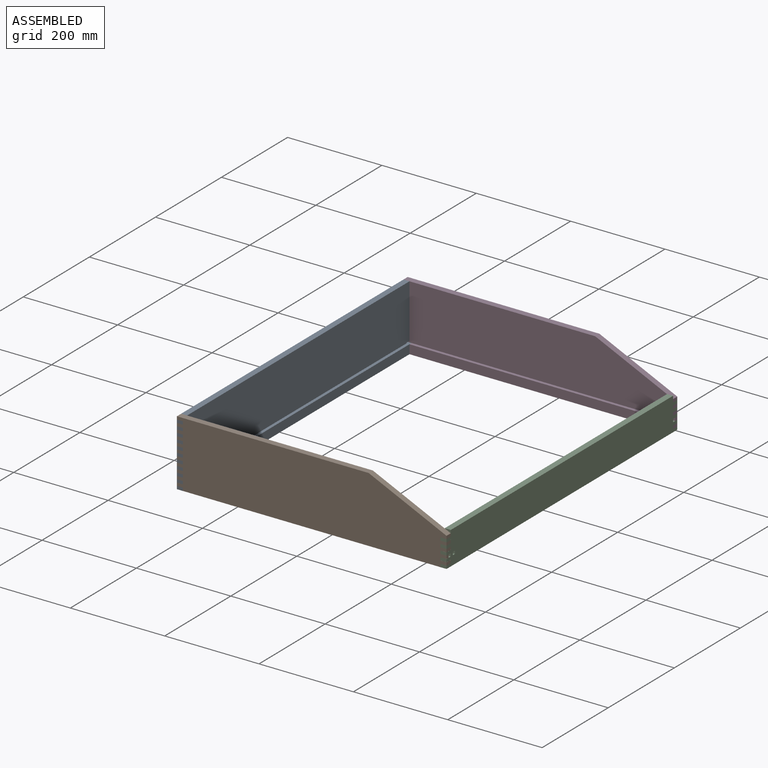
[diagram: assembled view]
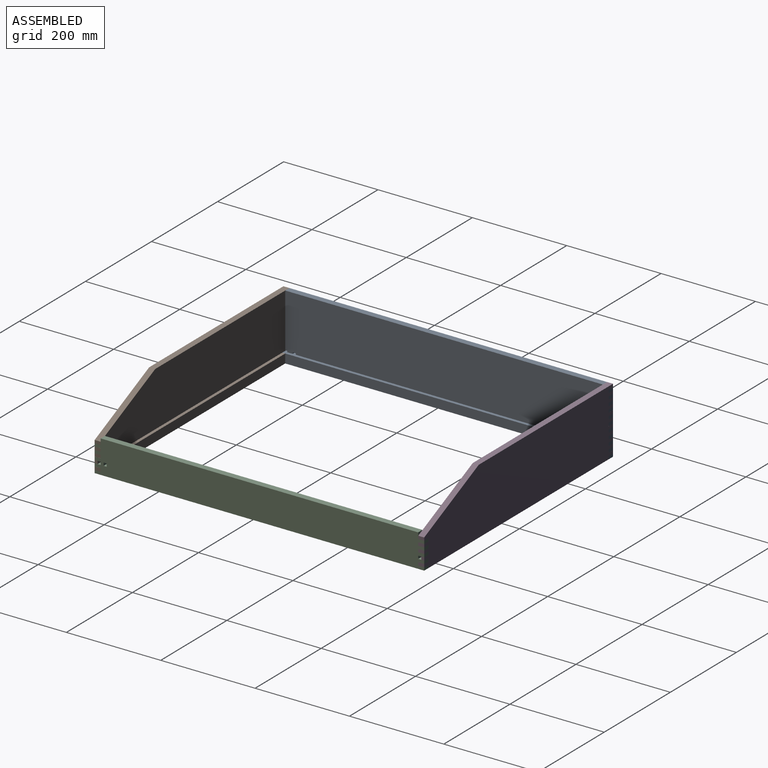
[diagram: assembled view, second angle]
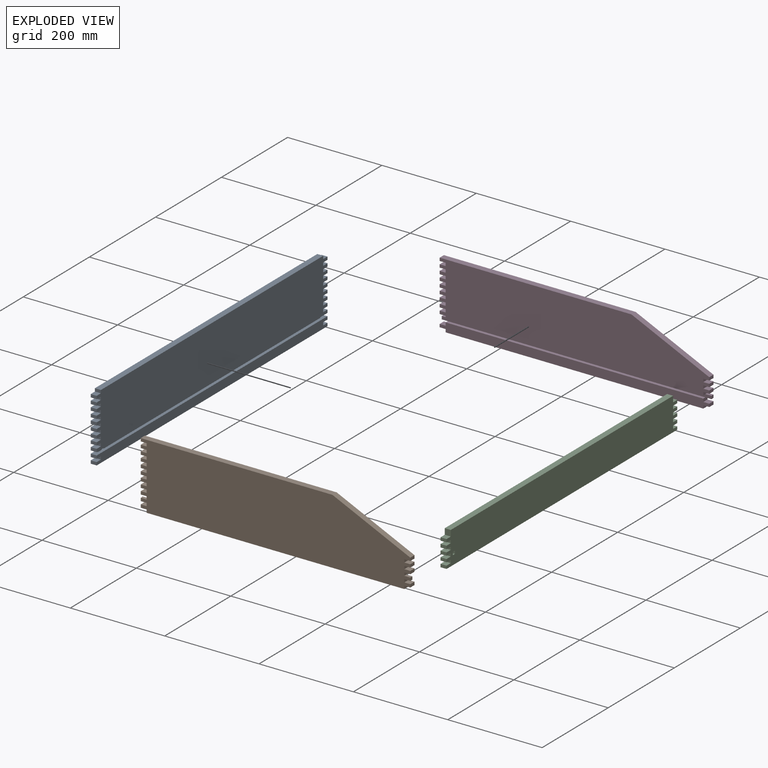
[diagram: exploded view]
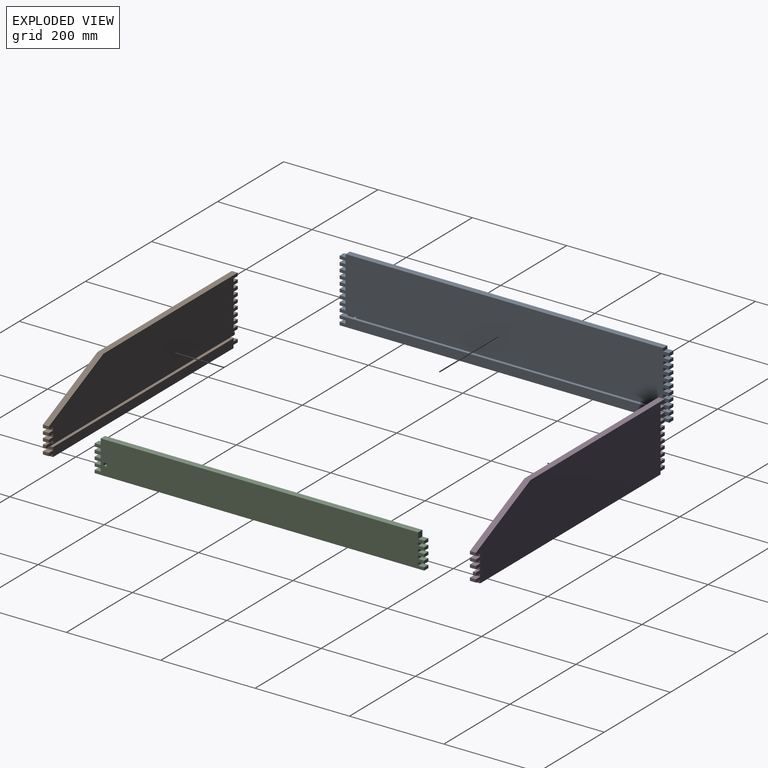
[diagram: exploded view, second angle]
ASSEMBLY  parts=4 mates=7
PART A: 93 faces, bbox 12.7x698.5x139.7 mm
  f0: plane 698.5x139.7mm, normal (-1,0,0), area 95785.7mm2, adj f2,f3,f5,f6,f7,f8,f9,f10
  f1: plane 655.51x6.35mm, normal (1,0,0), area 4162.5mm2, adj f3,f73,f74,f92
  f2: plane 6.35x6.35mm, normal (0,-1,0), area 40.3mm2, adj f0,f73,f74,f90
  f3: plane 6.35x6.35mm, normal (0,1,0), area 40.3mm2, adj f0,f1,f73,f74
  f4: plane 698.5x19.05mm, normal (1,0,0), area 13146.9mm2, adj f62,f63,f64,f65,f66,f67,f68,f69
  f5: plane 12.7x6.35mm, normal (0,1,0), area 80.6mm2, adj f0,f6,f88,f89
  f6: plane 12.7x12.54mm, normal (0,0,-1), area 159.3mm2, adj f0,f5,f7,f89
  f7: plane 12.7x6.35mm, normal (0,1,0), area 80.6mm2, adj f0,f6,f8,f89
  f8: plane 12.7x12.54mm, normal (0,0,1), area 159.3mm2, adj f0,f7,f9,f89
  f9: plane 12.7x6.35mm, normal (0,1,0), area 80.6mm2, adj f0,f8,f10,f89
  f10: plane 12.7x12.52mm, normal (0,0,-1), area 158.9mm2, adj f0,f9,f11,f89
  f11: plane 12.7x6.35mm, normal (0,1,0), area 80.6mm2, adj f0,f10,f12,f89
  f12: plane 12.7x12.52mm, normal (0,0,1), area 158.9mm2, adj f0,f11,f13,f89
  f13: plane 12.7x6.35mm, normal (0,1,0), area 80.6mm2, adj f0,f12,f14,f89
  f14: plane 12.7x12.54mm, normal (0,0,-1), area 159.3mm2, adj f0,f13,f15,f89
  f15: plane 12.7x6.35mm, normal (0,1,0), area 80.6mm2, adj f0,f14,f16,f89
  f16: plane 12.7x12.54mm, normal (0,0,1), area 159.3mm2, adj f0,f15,f17,f89
  f17: plane 12.7x6.35mm, normal (0,1,0), area 80.6mm2, adj f0,f16,f18,f89
  f18: plane 12.7x12.54mm, normal (0,0,-1), area 159.3mm2, adj f0,f17,f19,f89
  f19: plane 12.7x6.35mm, normal (0,1,0), area 80.6mm2, adj f0,f18,f20,f89
  f20: plane 12.7x12.54mm, normal (0,0,1), area 159.3mm2, adj f0,f19,f21,f89
  f21: plane 12.7x6.35mm, normal (0,1,0), area 80.6mm2, adj f0,f20,f22,f89
  f22: plane 12.7x12.54mm, normal (0,0,-1), area 159.3mm2, adj f0,f21,f23,f89
  f23: plane 12.7x6.35mm, normal (0,1,0), area 80.6mm2, adj f0,f22,f24,f89
  f24: plane 12.7x12.7mm, normal (0,0,1), area 161.3mm2, adj f0,f23,f25,f89
  f25: plane 12.7x6.35mm, normal (0,1,0), area 80.6mm2, adj f0,f24,f26,f89
  f26: plane 673.1x12.7mm, normal (0,0,1), area 8548.4mm2, adj f0,f25,f27,f89
  f27: plane 12.7x6.35mm, normal (0,-1,0), area 80.6mm2, adj f0,f26,f28,f89
  f28: plane 12.7x12.7mm, normal (0,0,1), area 161.3mm2, adj f0,f27,f29,f89
  f29: plane 12.7x6.35mm, normal (0,-1,0), area 80.6mm2, adj f0,f28,f30,f89
  f30: plane 12.7x12.54mm, normal (0,0,-1), area 159.3mm2, adj f0,f29,f31,f89
  f31: plane 12.7x6.35mm, normal (0,-1,0), area 80.6mm2, adj f0,f30,f32,f89
  f32: plane 12.7x12.54mm, normal (0,0,1), area 159.3mm2, adj f0,f31,f33,f89
  f33: plane 12.7x6.35mm, normal (0,-1,0), area 80.6mm2, adj f0,f32,f34,f89
  f34: plane 12.7x12.54mm, normal (0,0,-1), area 159.3mm2, adj f0,f33,f35,f89
  f35: plane 12.7x6.35mm, normal (0,-1,0), area 80.6mm2, adj f0,f34,f36,f89
  f36: plane 12.7x12.54mm, normal (0,0,1), area 159.3mm2, adj f0,f35,f37,f89
  f37: plane 12.7x6.35mm, normal (0,-1,0), area 80.6mm2, adj f0,f36,f38,f89
  f38: plane 12.7x12.54mm, normal (0,0,-1), area 159.3mm2, adj f0,f37,f39,f89
  f39: plane 12.7x6.35mm, normal (0,-1,0), area 80.6mm2, adj f0,f38,f40,f89
  f40: plane 12.7x12.52mm, normal (0,0,1), area 158.9mm2, adj f0,f39,f41,f89
  f41: plane 12.7x6.35mm, normal (0,-1,0), area 80.6mm2, adj f0,f40,f42,f89
  f42: plane 12.7x12.52mm, normal (0,0,-1), area 158.9mm2, adj f0,f41,f43,f89
  f43: plane 12.7x6.35mm, normal (0,-1,0), area 80.6mm2, adj f0,f42,f44,f89
  f44: plane 12.7x12.54mm, normal (0,0,1), area 159.3mm2, adj f0,f43,f45,f89
  f45: plane 12.7x6.35mm, normal (0,-1,0), area 80.6mm2, adj f0,f44,f46,f89
  f46: plane 12.7x12.54mm, normal (0,0,-1), area 159.3mm2, adj f0,f45,f47,f89
  f47: plane 12.7x6.35mm, normal (0,-1,0), area 80.6mm2, adj f0,f46,f48,f89
  f48: plane 12.7x12.54mm, normal (0,0,1), area 159.3mm2, adj f0,f47,f49,f89
  f49: plane 12.7x6.35mm, normal (0,-1,0), area 80.6mm2, adj f0,f48,f50,f89
  f50: plane 12.7x12.54mm, normal (0,0,-1), area 159.3mm2, adj f0,f49,f51,f89
  f51: plane 12.7x6.35mm, normal (0,-1,0), area 80.6mm2, adj f0,f50,f52,f89
  f52: plane 12.7x12.54mm, normal (0,0,1), area 159.3mm2, adj f0,f51,f53,f89
  f53: plane 12.7x6.35mm, normal (0,-1,0), area 80.6mm2, adj f0,f52,f54,f89
  f54: plane 12.7x12.54mm, normal (0,0,-1), area 159.3mm2, adj f0,f53,f55,f89
  f55: plane 12.7x6.35mm, normal (0,-1,0), area 80.6mm2, adj f0,f54,f56,f89
  f56: plane 12.7x12.54mm, normal (0,0,1), area 159.3mm2, adj f0,f55,f57,f89
  f57: plane 12.7x6.35mm, normal (0,-1,0), area 80.6mm2, adj f0,f56,f58,f89
  f58: plane 12.7x12.54mm, normal (0,0,-1), area 159.3mm2, adj f0,f57,f59,f89
  f59: plane 12.7x6.35mm, normal (0,-1,0), area 80.6mm2, adj f0,f58,f60,f89
  f60: plane 12.7x12.54mm, normal (0,0,1), area 159.3mm2, adj f0,f59,f61,f89
  f61: plane 12.7x6.35mm, normal (0,-1,0), area 80.6mm2, adj f0,f60,f74,f89
  f62: plane 12.7x6.35mm, normal (0,-1,0), area 80.6mm2, adj f0,f4,f63,f73
  f63: plane 12.7x12.52mm, normal (0,0,-1), area 158.9mm2, adj f0,f4,f62,f64
  f64: plane 12.7x6.35mm, normal (0,-1,0), area 80.6mm2, adj f0,f4,f63,f65
  f65: plane 12.7x12.54mm, normal (0,0,1), area 159.3mm2, adj f0,f4,f64,f66
  f66: plane 12.7x6.35mm, normal (0,-1,0), area 80.6mm2, adj f0,f4,f65,f67
  f67: plane 698.5x12.7mm, normal (0,0,-1), area 8870.9mm2, adj f0,f4,f66,f68
  f68: plane 12.7x6.35mm, normal (0,1,0), area 80.6mm2, adj f0,f4,f67,f69
  f69: plane 12.7x12.54mm, normal (0,0,1), area 159.3mm2, adj f0,f4,f68,f70
  f70: plane 12.7x6.35mm, normal (0,1,0), area 80.6mm2, adj f0,f4,f69,f71
  f71: plane 12.7x12.52mm, normal (0,0,-1), area 158.9mm2, adj f0,f4,f70,f72
  f72: plane 12.7x6.35mm, normal (0,1,0), area 80.6mm2, adj f0,f4,f71,f73
  f73: plane 698.45x12.7mm, normal (0,0,1), area 4634.4mm2, adj f0,f1,f2,f3,f4,f62,f72,f90
  f74: plane 698.5x12.7mm, normal (0,0,-1), area 4635mm2, adj f0,f1,f2,f3,f61,f75,f89,f90
  f75: plane 12.7x6.35mm, normal (0,1,0), area 80.6mm2, adj f0,f74,f76,f89
  f76: plane 12.7x12.54mm, normal (0,0,1), area 159.3mm2, adj f0,f75,f77,f89
  f77: plane 12.7x6.35mm, normal (0,1,0), area 80.6mm2, adj f0,f76,f78,f89
  f78: plane 12.7x12.54mm, normal (0,0,-1), area 159.3mm2, adj f0,f77,f79,f89
  f79: plane 12.7x6.35mm, normal (0,1,0), area 80.6mm2, adj f0,f78,f80,f89
  f80: plane 12.7x12.54mm, normal (0,0,1), area 159.3mm2, adj f0,f79,f81,f89
  f81: plane 12.7x6.35mm, normal (0,1,0), area 80.6mm2, adj f0,f80,f82,f89
  f82: plane 12.7x12.54mm, normal (0,0,-1), area 159.3mm2, adj f0,f81,f83,f89
  f83: plane 12.7x6.35mm, normal (0,1,0), area 80.6mm2, adj f0,f82,f84,f89
  f84: plane 12.7x12.54mm, normal (0,0,1), area 159.3mm2, adj f0,f83,f85,f89
  f85: plane 12.7x6.35mm, normal (0,1,0), area 80.6mm2, adj f0,f84,f86,f89
  f86: plane 12.7x12.54mm, normal (0,0,-1), area 159.3mm2, adj f0,f85,f87,f89
  f87: plane 12.7x6.35mm, normal (0,1,0), area 80.6mm2, adj f0,f86,f88,f89
  f88: plane 12.7x12.54mm, normal (0,0,1), area 159.3mm2, adj f0,f5,f87,f89
  f89: plane 698.5x114.3mm, normal (1,0,0), area 78402.9mm2, adj f5,f6,f7,f8,f9,f10,f11,f12
  f90: plane 11.56x6.35mm, normal (1,0,0), area 73.4mm2, adj f2,f73,f74,f91
  f91: plane 6.35x6.35mm, normal (0,1,0), area 40.3mm2, adj f0,f73,f74,f90
  f92: plane 6.35x6.35mm, normal (0,-1,0), area 40.3mm2, adj f0,f1,f73,f74
PART B: 71 faces, bbox 571.5x12.7x139.7 mm
  f0: plane 12.7x6.35mm, normal (0,0,-1), area 80.6mm2, adj f8,f9,f67,f70
  f1: plane 12.7x6.35mm, normal (0,0,1), area 80.6mm2, adj f21,f22,f67,f70
  f2: plane 571.5x114.3mm, normal (0,1,0), area 58064.4mm2, adj f3,f4,f5,f6,f22,f23,f24,f25
  f3: plane 12.7x12.7mm, normal (0,0,1), area 161.3mm2, adj f2,f4,f65,f67
  f4: plane 12.7x6.35mm, normal (-1,0,0), area 80.6mm2, adj f2,f3,f5,f67
  f5: plane 12.7x12.7mm, normal (0,0,-1), area 161.3mm2, adj f2,f4,f6,f67
  f6: plane 12.7x6.35mm, normal (-1,0,0), area 80.6mm2, adj f2,f5,f7,f67,f69
  f7: plane 12.7x6.35mm, normal (0,0,1), area 80.6mm2, adj f6,f8,f67,f70
  f8: plane 6.35x6.35mm, normal (-1,0,0), area 40.3mm2, adj f0,f7,f67,f70
  f9: plane 12.7x6.35mm, normal (-1,0,0), area 80.6mm2, adj f0,f10,f66,f67,f68
  f10: plane 12.7x12.7mm, normal (0,0,1), area 161.3mm2, adj f9,f11,f66,f67
  f11: plane 12.7x6.35mm, normal (-1,0,0), area 80.6mm2, adj f10,f12,f66,f67
  f12: plane 12.7x12.7mm, normal (0,0,-1), area 161.3mm2, adj f11,f13,f66,f67
  f13: plane 12.7x6.35mm, normal (-1,0,0), area 80.6mm2, adj f12,f14,f66,f67
  f14: plane 546.1x12.7mm, normal (0,0,-1), area 6935.5mm2, adj f13,f15,f66,f67
  f15: plane 12.7x6.35mm, normal (1,0,0), area 80.6mm2, adj f14,f16,f66,f67
  f16: plane 12.7x12.7mm, normal (0,0,-1), area 161.3mm2, adj f15,f17,f66,f67
  f17: plane 12.7x6.35mm, normal (1,0,0), area 80.6mm2, adj f16,f18,f66,f67
  f18: plane 12.7x12.7mm, normal (0,0,1), area 161.3mm2, adj f17,f19,f66,f67
  f19: plane 12.7x6.35mm, normal (1,0,0), area 80.6mm2, adj f18,f20,f66,f67,f68
  f20: plane 12.7x6.35mm, normal (0,0,-1), area 80.6mm2, adj f19,f21,f67,f70
  f21: plane 6.35x6.35mm, normal (1,0,0), area 40.3mm2, adj f1,f20,f67,f70
  f22: plane 12.7x6.35mm, normal (1,0,0), area 80.6mm2, adj f1,f2,f23,f67,f69
  f23: plane 12.7x12.7mm, normal (0,0,-1), area 161.3mm2, adj f2,f22,f24,f67
  f24: plane 12.7x6.35mm, normal (1,0,0), area 80.6mm2, adj f2,f23,f25,f67
  f25: plane 12.7x12.7mm, normal (0,0,1), area 161.3mm2, adj f2,f24,f26,f67
  f26: plane 12.7x6.35mm, normal (1,0,0), area 80.6mm2, adj f2,f25,f27,f67
  f27: plane 12.7x12.7mm, normal (0,0,-1), area 161.3mm2, adj f2,f26,f28,f67
  f28: plane 12.7x6.35mm, normal (1,0,0), area 80.6mm2, adj f2,f27,f29,f67
  f29: plane 12.7x12.7mm, normal (0,0,1), area 161.3mm2, adj f2,f28,f30,f67
  f30: plane 12.7x6.35mm, normal (1,0,0), area 80.6mm2, adj f2,f29,f31,f67
  f31: plane 12.7x12.7mm, normal (0,0,-1), area 161.3mm2, adj f2,f30,f32,f67
  f32: plane 12.7x6.35mm, normal (1,0,0), area 80.6mm2, adj f2,f31,f33,f67
  f33: plane 165.1x76.2mm, normal (0.42,0,0.91), area 2309.3mm2, adj f2,f32,f34,f67
  f34: plane 406.4x12.7mm, normal (0,0,1), area 5161.3mm2, adj f2,f33,f35,f67
  f35: plane 12.7x6.35mm, normal (-1,0,0), area 80.6mm2, adj f2,f34,f36,f67
  f36: plane 12.7x12.7mm, normal (0,0,-1), area 161.3mm2, adj f2,f35,f37,f67
  f37: plane 12.7x6.35mm, normal (-1,0,0), area 80.6mm2, adj f2,f36,f38,f67
  f38: plane 12.7x12.7mm, normal (0,0,1), area 161.3mm2, adj f2,f37,f39,f67
  f39: plane 12.7x6.35mm, normal (-1,0,0), area 80.6mm2, adj f2,f38,f40,f67
  f40: plane 12.7x12.7mm, normal (0,0,-1), area 161.3mm2, adj f2,f39,f41,f67
  f41: plane 12.7x6.35mm, normal (-1,0,0), area 80.6mm2, adj f2,f40,f42,f67
  f42: plane 12.7x12.7mm, normal (0,0,1), area 161.3mm2, adj f2,f41,f43,f67
  f43: plane 12.7x6.35mm, normal (-1,0,0), area 80.6mm2, adj f2,f42,f44,f67
  f44: plane 12.7x12.7mm, normal (0,0,-1), area 161.3mm2, adj f2,f43,f45,f67
  f45: plane 12.7x6.35mm, normal (-1,0,0), area 80.6mm2, adj f2,f44,f46,f67
  f46: plane 12.7x12.7mm, normal (0,0,1), area 161.3mm2, adj f2,f45,f47,f67
  f47: plane 12.7x6.35mm, normal (-1,0,0), area 80.6mm2, adj f2,f46,f48,f67
  f48: plane 12.7x12.7mm, normal (0,0,-1), area 161.3mm2, adj f2,f47,f49,f67
  f49: plane 12.7x6.35mm, normal (-1,0,0), area 80.6mm2, adj f2,f48,f50,f67
  f50: plane 12.7x12.7mm, normal (0,0,1), area 161.3mm2, adj f2,f49,f51,f67
  f51: plane 12.7x6.35mm, normal (-1,0,0), area 80.6mm2, adj f2,f50,f52,f67
  f52: plane 12.7x12.7mm, normal (0,0,-1), area 161.3mm2, adj f2,f51,f53,f67
  f53: plane 12.7x6.35mm, normal (-1,0,0), area 80.6mm2, adj f2,f52,f54,f67
  f54: plane 12.7x12.7mm, normal (0,0,1), area 161.3mm2, adj f2,f53,f55,f67
  f55: plane 12.7x6.35mm, normal (-1,0,0), area 80.6mm2, adj f2,f54,f56,f67
  f56: plane 12.7x12.7mm, normal (0,0,-1), area 161.3mm2, adj f2,f55,f57,f67
  f57: plane 12.7x6.35mm, normal (-1,0,0), area 80.6mm2, adj f2,f56,f58,f67
  f58: plane 12.7x12.7mm, normal (0,0,1), area 161.3mm2, adj f2,f57,f59,f67
  f59: plane 12.7x6.35mm, normal (-1,0,0), area 80.6mm2, adj f2,f58,f60,f67
  f60: plane 12.7x12.7mm, normal (0,0,-1), area 161.3mm2, adj f2,f59,f61,f67
  f61: plane 12.7x6.35mm, normal (-1,0,0), area 80.6mm2, adj f2,f60,f62,f67
  f62: plane 12.7x12.7mm, normal (0,0,1), area 161.3mm2, adj f2,f61,f63,f67
  f63: plane 12.7x6.35mm, normal (-1,0,0), area 80.6mm2, adj f2,f62,f64,f67
  f64: plane 12.7x12.7mm, normal (0,0,-1), area 161.3mm2, adj f2,f63,f65,f67
  f65: plane 12.7x6.35mm, normal (-1,0,0), area 80.6mm2, adj f2,f3,f64,f67
  f66: plane 571.5x19.05mm, normal (0,1,0), area 10564.5mm2, adj f9,f10,f11,f12,f13,f14,f15,f16
  f67: plane 571.5x139.7mm, normal (0,-1,0), area 72257.9mm2, adj f0,f1,f3,f4,f5,f6,f7,f8
  f68: plane 546.1x6.35mm, normal (0,0,1), area 3467.7mm2, adj f9,f19,f66,f70
  f69: plane 546.1x6.35mm, normal (0,0,-1), area 3467.7mm2, adj f2,f6,f22,f70
  f70: plane 571.5x6.35mm, normal (0,1,0), area 3629mm2, adj f0,f1,f7,f8,f20,f21,f68,f69
PART C: 50 faces, bbox 12.7x698.5x69.9 mm
  f0: plane 12.7x6.35mm, normal (0,0,-1), area 80.6mm2, adj f1,f2,f28,f49
  f1: plane 698.5x69.85mm, normal (-1,0,0), area 47780.9mm2, adj f0,f3,f4,f5,f6,f7,f8,f9
  f2: plane 698.5x69.85mm, normal (1,0,0), area 47780.9mm2, adj f0,f3,f4,f5,f6,f7,f8,f9
  f3: plane 12.7x12.7mm, normal (0,0,-1), area 161.3mm2, adj f1,f2,f4,f42
  f4: plane 12.7x6.35mm, normal (0,1,0), area 80.6mm2, adj f1,f2,f3,f5
  f5: plane 12.7x12.7mm, normal (0,0,1), area 161.3mm2, adj f1,f2,f4,f6
  f6: plane 12.7x6.35mm, normal (0,1,0), area 80.6mm2, adj f1,f2,f5,f7
  f7: plane 12.7x12.7mm, normal (0,0,-1), area 161.3mm2, adj f1,f2,f6,f8
  f8: plane 12.7x6.35mm, normal (0,1,0), area 80.6mm2, adj f1,f2,f7,f9
  f9: plane 12.7x12.7mm, normal (0,0,1), area 161.3mm2, adj f1,f2,f8,f10
  f10: plane 12.7x6.35mm, normal (0,1,0), area 80.6mm2, adj f1,f2,f9,f11
  f11: plane 12.7x12.7mm, normal (0,0,-1), area 161.3mm2, adj f1,f2,f10,f12
  f12: plane 12.7x6.35mm, normal (0,1,0), area 80.6mm2, adj f1,f2,f11,f13
  f13: plane 12.7x12.7mm, normal (0,0,1), area 161.3mm2, adj f1,f2,f12,f14
  f14: plane 12.7x12.7mm, normal (0,1,0), area 161.3mm2, adj f1,f2,f13,f15
  f15: plane 673x12.7mm, normal (0,0,1), area 8547.1mm2, adj f1,f2,f14,f16
  f16: plane 12.7x12.59mm, normal (0,-1,0), area 159.9mm2, adj f1,f2,f15,f17
  f17: plane 12.8x12.7mm, normal (0,0,1), area 162.5mm2, adj f1,f2,f16,f18
  f18: plane 12.7x6.43mm, normal (0,-1,0), area 81.6mm2, adj f1,f2,f17,f19
  f19: plane 12.8x12.7mm, normal (0,0,-1), area 162.5mm2, adj f1,f2,f18,f20
  f20: plane 12.7x6.32mm, normal (0,-1,0), area 80.3mm2, adj f1,f2,f19,f21
  f21: plane 12.8x12.7mm, normal (0,0,1), area 162.5mm2, adj f1,f2,f20,f22
  f22: plane 12.7x6.66mm, normal (0,-1,0), area 84.5mm2, adj f1,f2,f21,f23
  f23: plane 12.8x12.7mm, normal (0,0,-1), area 162.5mm2, adj f1,f2,f22,f24
  f24: plane 12.7x6.21mm, normal (0,-1,0), area 78.9mm2, adj f1,f2,f23,f25
  f25: plane 12.8x12.7mm, normal (0,0,1), area 162.5mm2, adj f1,f2,f24,f26
  f26: plane 12.7x6.32mm, normal (0,-1,0), area 80.3mm2, adj f1,f2,f25,f27
  f27: plane 12.7x0.1mm, normal (0,0,-1), area 1.2mm2, adj f1,f2,f26,f48
  f28: plane 12.7x6.32mm, normal (0,-1,0), area 80.3mm2, adj f0,f1,f2,f29
  f29: plane 12.8x12.7mm, normal (0,0,1), area 162.5mm2, adj f1,f2,f28,f30
  f30: plane 12.7x6.22mm, normal (0,-1,0), area 79mm2, adj f1,f2,f29,f31
  f31: plane 12.8x12.7mm, normal (0,0,-1), area 162.5mm2, adj f1,f2,f30,f32
  f32: plane 12.7x6.43mm, normal (0,-1,0), area 81.6mm2, adj f1,f2,f31,f33
  f33: plane 12.8x12.7mm, normal (0,0,1), area 162.5mm2, adj f1,f2,f32,f34
  f34: plane 12.7x6.35mm, normal (0,-1,0), area 80.6mm2, adj f1,f2,f33,f35
  f35: plane 698.5x12.7mm, normal (0,0,-1), area 8871mm2, adj f1,f2,f34,f36
  f36: plane 12.7x6.35mm, normal (0,1,0), area 80.6mm2, adj f1,f2,f35,f37
  f37: plane 12.7x12.7mm, normal (0,0,1), area 161.3mm2, adj f1,f2,f36,f38
  f38: plane 12.7x6.35mm, normal (0,1,0), area 80.6mm2, adj f1,f2,f37,f39
  f39: plane 12.7x12.7mm, normal (0,0,-1), area 161.3mm2, adj f1,f2,f38,f40
  f40: plane 12.7x6.35mm, normal (0,1,0), area 80.6mm2, adj f1,f2,f39,f41
  f41: plane 12.7x12.7mm, normal (0,0,1), area 161.3mm2, adj f1,f2,f40,f42
  f42: plane 12.7x6.35mm, normal (0,1,0), area 80.6mm2, adj f1,f2,f3,f41
  f43: plane 12.7x6.35mm, normal (0,0,-1), area 80.6mm2, adj f1,f2,f44,f46
  f44: plane 12.7x6.35mm, normal (0,1,0), area 80.6mm2, adj f1,f2,f43,f45
  f45: plane 12.7x6.35mm, normal (0,0,1), area 80.6mm2, adj f1,f2,f44,f46
  f46: plane 12.7x6.35mm, normal (0,-1,0), area 80.6mm2, adj f1,f2,f43,f45
  f47: plane 12.7x6.35mm, normal (0,0,-1), area 80.6mm2, adj f1,f2,f48,f49
  f48: plane 12.7x0.08mm, normal (0,1,0), area 1mm2, adj f1,f2,f27,f47
  f49: plane 12.7x0.08mm, normal (0,-1,0), area 1mm2, adj f0,f1,f2,f47
PART D: 71 faces, bbox 571.5x12.7x139.7 mm
  f0: plane 12.7x6.35mm, normal (0,0,-1), area 80.6mm2, adj f3,f10,f67,f70
  f1: plane 12.7x6.35mm, normal (0,0,1), area 80.6mm2, adj f4,f22,f67,f70
  f2: plane 571.5x114.3mm, normal (0,-1,0), area 58064.4mm2, adj f5,f6,f7,f8,f22,f23,f24,f25
  f3: plane 6.35x6.35mm, normal (-1,0,0), area 40.3mm2, adj f0,f9,f67,f70
  f4: plane 6.35x6.35mm, normal (1,0,0), area 40.3mm2, adj f1,f21,f67,f70
  f5: plane 12.7x12.7mm, normal (0,0,1), area 161.3mm2, adj f2,f6,f65,f67
  f6: plane 12.7x6.35mm, normal (-1,0,0), area 80.6mm2, adj f2,f5,f7,f67
  f7: plane 12.7x12.7mm, normal (0,0,-1), area 161.3mm2, adj f2,f6,f8,f67
  f8: plane 12.7x6.35mm, normal (-1,0,0), area 80.6mm2, adj f2,f7,f9,f67,f69
  f9: plane 12.7x6.35mm, normal (0,0,1), area 80.6mm2, adj f3,f8,f67,f70
  f10: plane 12.7x6.35mm, normal (-1,0,0), area 80.6mm2, adj f0,f11,f66,f67,f68
  f11: plane 12.7x12.7mm, normal (0,0,1), area 161.3mm2, adj f10,f12,f66,f67
  f12: plane 12.7x6.35mm, normal (-1,0,0), area 80.6mm2, adj f11,f13,f66,f67
  f13: plane 12.7x12.7mm, normal (0,0,-1), area 161.3mm2, adj f12,f14,f66,f67
  f14: plane 12.7x6.35mm, normal (-1,0,0), area 80.6mm2, adj f13,f15,f66,f67
  f15: plane 546.1x12.7mm, normal (0,0,-1), area 6935.5mm2, adj f14,f16,f66,f67
  f16: plane 12.7x6.35mm, normal (1,0,0), area 80.6mm2, adj f15,f17,f66,f67
  f17: plane 12.7x12.7mm, normal (0,0,-1), area 161.3mm2, adj f16,f18,f66,f67
  f18: plane 12.7x6.35mm, normal (1,0,0), area 80.6mm2, adj f17,f19,f66,f67
  f19: plane 12.7x12.7mm, normal (0,0,1), area 161.3mm2, adj f18,f20,f66,f67
  f20: plane 12.7x6.35mm, normal (1,0,0), area 80.6mm2, adj f19,f21,f66,f67,f68
  f21: plane 12.7x6.35mm, normal (0,0,-1), area 80.6mm2, adj f4,f20,f67,f70
  f22: plane 12.7x6.35mm, normal (1,0,0), area 80.6mm2, adj f1,f2,f23,f67,f69
  f23: plane 12.7x12.7mm, normal (0,0,-1), area 161.3mm2, adj f2,f22,f24,f67
  f24: plane 12.7x6.35mm, normal (1,0,0), area 80.6mm2, adj f2,f23,f25,f67
  f25: plane 12.7x12.7mm, normal (0,0,1), area 161.3mm2, adj f2,f24,f26,f67
  f26: plane 12.7x6.35mm, normal (1,0,0), area 80.6mm2, adj f2,f25,f27,f67
  f27: plane 12.7x12.7mm, normal (0,0,-1), area 161.3mm2, adj f2,f26,f28,f67
  f28: plane 12.7x6.35mm, normal (1,0,0), area 80.6mm2, adj f2,f27,f29,f67
  f29: plane 12.7x12.7mm, normal (0,0,1), area 161.3mm2, adj f2,f28,f30,f67
  f30: plane 12.7x6.35mm, normal (1,0,0), area 80.6mm2, adj f2,f29,f31,f67
  f31: plane 12.7x12.7mm, normal (0,0,-1), area 161.3mm2, adj f2,f30,f32,f67
  f32: plane 12.7x6.35mm, normal (1,0,0), area 80.6mm2, adj f2,f31,f33,f67
  f33: plane 165.1x76.2mm, normal (0.42,0,0.91), area 2309.3mm2, adj f2,f32,f34,f67
  f34: plane 406.4x12.7mm, normal (0,0,1), area 5161.3mm2, adj f2,f33,f35,f67
  f35: plane 12.7x6.35mm, normal (-1,0,0), area 80.6mm2, adj f2,f34,f36,f67
  f36: plane 12.7x12.7mm, normal (0,0,-1), area 161.3mm2, adj f2,f35,f37,f67
  f37: plane 12.7x6.35mm, normal (-1,0,0), area 80.6mm2, adj f2,f36,f38,f67
  f38: plane 12.7x12.7mm, normal (0,0,1), area 161.3mm2, adj f2,f37,f39,f67
  f39: plane 12.7x6.35mm, normal (-1,0,0), area 80.6mm2, adj f2,f38,f40,f67
  f40: plane 12.7x12.7mm, normal (0,0,-1), area 161.3mm2, adj f2,f39,f41,f67
  f41: plane 12.7x6.35mm, normal (-1,0,0), area 80.6mm2, adj f2,f40,f42,f67
  f42: plane 12.7x12.7mm, normal (0,0,1), area 161.3mm2, adj f2,f41,f43,f67
  f43: plane 12.7x6.35mm, normal (-1,0,0), area 80.6mm2, adj f2,f42,f44,f67
  f44: plane 12.7x12.7mm, normal (0,0,-1), area 161.3mm2, adj f2,f43,f45,f67
  f45: plane 12.7x6.35mm, normal (-1,0,0), area 80.6mm2, adj f2,f44,f46,f67
  f46: plane 12.7x12.7mm, normal (0,0,1), area 161.3mm2, adj f2,f45,f47,f67
  f47: plane 12.7x6.35mm, normal (-1,0,0), area 80.6mm2, adj f2,f46,f48,f67
  f48: plane 12.7x12.7mm, normal (0,0,-1), area 161.3mm2, adj f2,f47,f49,f67
  f49: plane 12.7x6.35mm, normal (-1,0,0), area 80.6mm2, adj f2,f48,f50,f67
  f50: plane 12.7x12.7mm, normal (0,0,1), area 161.3mm2, adj f2,f49,f51,f67
  f51: plane 12.7x6.35mm, normal (-1,0,0), area 80.6mm2, adj f2,f50,f52,f67
  f52: plane 12.7x12.7mm, normal (0,0,-1), area 161.3mm2, adj f2,f51,f53,f67
  f53: plane 12.7x6.35mm, normal (-1,0,0), area 80.6mm2, adj f2,f52,f54,f67
  f54: plane 12.7x12.7mm, normal (0,0,1), area 161.3mm2, adj f2,f53,f55,f67
  f55: plane 12.7x6.35mm, normal (-1,0,0), area 80.6mm2, adj f2,f54,f56,f67
  f56: plane 12.7x12.7mm, normal (0,0,-1), area 161.3mm2, adj f2,f55,f57,f67
  f57: plane 12.7x6.35mm, normal (-1,0,0), area 80.6mm2, adj f2,f56,f58,f67
  f58: plane 12.7x12.7mm, normal (0,0,1), area 161.3mm2, adj f2,f57,f59,f67
  f59: plane 12.7x6.35mm, normal (-1,0,0), area 80.6mm2, adj f2,f58,f60,f67
  f60: plane 12.7x12.7mm, normal (0,0,-1), area 161.3mm2, adj f2,f59,f61,f67
  f61: plane 12.7x6.35mm, normal (-1,0,0), area 80.6mm2, adj f2,f60,f62,f67
  f62: plane 12.7x12.7mm, normal (0,0,1), area 161.3mm2, adj f2,f61,f63,f67
  f63: plane 12.7x6.35mm, normal (-1,0,0), area 80.6mm2, adj f2,f62,f64,f67
  f64: plane 12.7x12.7mm, normal (0,0,-1), area 161.3mm2, adj f2,f63,f65,f67
  f65: plane 12.7x6.35mm, normal (-1,0,0), area 80.6mm2, adj f2,f5,f64,f67
  f66: plane 571.5x19.05mm, normal (0,-1,0), area 10564.5mm2, adj f10,f11,f12,f13,f14,f15,f16,f17
  f67: plane 571.5x139.7mm, normal (0,1,0), area 72257.9mm2, adj f0,f1,f3,f4,f5,f6,f7,f8
  f68: plane 546.1x6.35mm, normal (0,0,1), area 3467.7mm2, adj f10,f20,f66,f70
  f69: plane 546.1x6.35mm, normal (0,0,-1), area 3467.7mm2, adj f2,f8,f22,f70
  f70: plane 571.5x6.35mm, normal (0,-1,0), area 3629mm2, adj f0,f1,f3,f4,f9,f21,f68,f69
PLACE A t=(-311.49,99.62,-63.19)mm
PLACE B t=(-311.49,81.87,-63.19)mm
PLACE C t=(260.01,94.67,-63.19)mm
PLACE D t=(-311.49,780.37,-63.19)mm
MATE planar A.f0 <-> B.f35  axis (-1,0,0) through (-311.49,431.25,6.62)mm
MATE planar C.f34 <-> B.f67  axis (0,-1,0) through (253.66,81.87,-60.02)mm
MATE planar C.f35 <-> D.f15  axis (0,0,-1) through (253.66,431.12,-63.19)mm
MATE planar C.f35 <-> B.f14  axis (0,0,-1) through (253.66,431.12,-63.19)mm
MATE planar C.f2 <-> D.f4  axis (1,0,0) through (260.01,431.4,-28.36)mm
MATE planar D.f67 <-> C.f36  axis (0,1,0) through (-43.95,780.37,3.06)mm
MATE planar C.f2 <-> B.f17  axis (1,0,0) through (260.01,431.4,-28.36)mm
